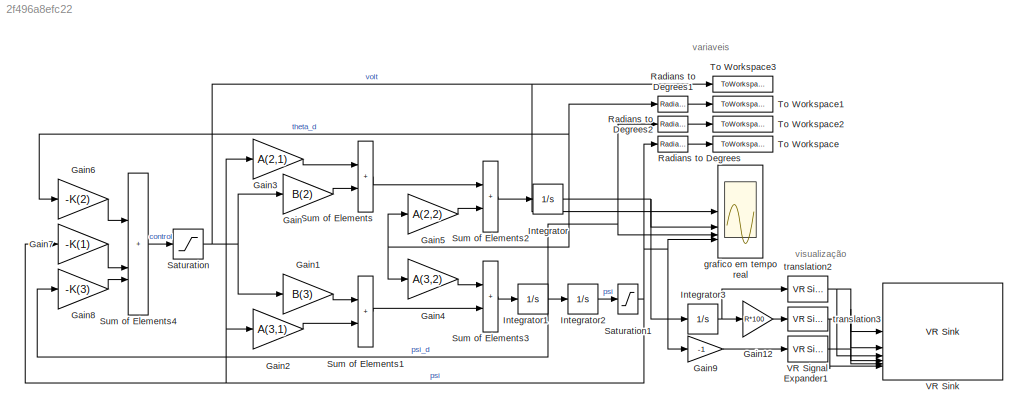
MODEL slx_2f496a8efc22
KIND model
CONFIG AbsTol = auto
CONFIG EnableMultiTasking = off
CONFIG FixedStep = auto
CONFIG InitFcn = start
CONFIG MaxStep = 0.01
CONFIG MinStep = auto
CONFIG RelTol = 1e-3
CONFIG SampleTimeConstraint = Unconstrained
CONFIG SolverName = VariableStepAuto
CONFIG StartTime = 0.0
CONFIG StopTime = 5
BLOCK [Gain] Gain
  Gain = B(2)
BLOCK [Gain] Gain1
  Gain = B(3)
BLOCK [Gain] Gain12
  Gain = R*100
BLOCK [Gain] Gain2
  Gain = A(3,1)
BLOCK [Gain] Gain3
  Gain = A(2,1)
BLOCK [Gain] Gain4
  Gain = A(3,2)
BLOCK [Gain] Gain5
  Gain = A(2,2)
BLOCK [Gain] Gain6
  Gain = -K(2)
  NameLocation = top
BLOCK [Gain] Gain7
  Gain = -K(1)
  NameLocation = top
BLOCK [Gain] Gain8
  Gain = -K(3)
  NameLocation = top
BLOCK [Gain] Gain9
  Gain = -1
BLOCK [Integrator] Integrator
  InitialCondition = Theta_d0
BLOCK [Integrator] Integrator1
  InitialCondition = Psi_d0
BLOCK [Integrator] Integrator2
  InitialCondition = Psi0
BLOCK [Integrator] Integrator3
  InitialCondition = Theta_d0
BLOCK [Reference] Radians to Degrees  REF=simulink_extras/Transformations/Radians
to Degrees
  SourceBlock = simulink_extras/Transformations/Radians\nto Degrees
  SourceType = RadiansToDegrees
BLOCK [Reference] Radians to Degrees1  REF=simulink_extras/Transformations/Radians
to Degrees
  SourceBlock = simulink_extras/Transformations/Radians\nto Degrees
  SourceType = RadiansToDegrees
BLOCK [Reference] Radians to Degrees2  REF=simulink_extras/Transformations/Radians
to Degrees
  SourceBlock = simulink_extras/Transformations/Radians\nto Degrees
  SourceType = RadiansToDegrees
BLOCK [Saturate] Saturation
  LowerLimit = -Umax
  UpperLimit = Umax
BLOCK [Saturate] Saturation1
  LowerLimit = -pi/180*95
  UpperLimit = pi/180*95
BLOCK [Sum] Sum of Elements
  IconShape = rectangular
  Inputs = 2
BLOCK [Sum] Sum of Elements1
  IconShape = rectangular
  Inputs = 2
BLOCK [Sum] Sum of Elements2
  IconShape = rectangular
  Inputs = 2
BLOCK [Sum] Sum of Elements3
  IconShape = rectangular
  Inputs = 2
BLOCK [Sum] Sum of Elements4
  IconShape = rectangular
  Inputs = 3
BLOCK [ToWorkspace] To Workspace
  FixptAsFi = on
  MaxDataPoints = inf
  SampleTime = -1
  VariableName = m_psi
BLOCK [ToWorkspace] To Workspace1
  FixptAsFi = on
  MaxDataPoints = inf
  SampleTime = -1
  VariableName = m_theta_d
BLOCK [ToWorkspace] To Workspace2
  FixptAsFi = on
  MaxDataPoints = inf
  SampleTime = -1
  VariableName = m_psi_d
BLOCK [ToWorkspace] To Workspace3
  FixptAsFi = on
  MaxDataPoints = inf
  SampleTime = -1
  VariableName = m_volt
BLOCK [Reference] VR Signal Expander1  REF=vrlib/VR Signal Expander
  SourceBlock = vrlib/VR Signal Expander
  SourceType = VR Signal Expander
BLOCK [Reference] VR Sink  REF=vrlib/VR Sink
  InstantiateOnLoad = on
  SourceBlock = vrlib/VR Sink
  SourceType = Virtual Reality Sink
BLOCK [Scope] grafico em tempo real
  Floating = off
  NumInputPorts = 4
  ScopeSpecificationString = Simulink.scopes.TimeScopeBlockCfg('CurrentConfiguration', extmgr.ConfigurationSet(extmgr.Configuration('Core','General UI',true),extmgr.Configuration('Core','Source UI',true),extmgr.Configuration('Sources','WiredSimulink',true,'DataLoggingVariableName','ScopeData1'),extmgr.Configuration('Visuals','Time Domain',true,'SerializedDisplays',{struct('MinYLimReal','-1.025','MaxYLimReal','9.225','YLabelRe...<+3487ch>
BLOCK [Reference] translation2  REF=vrlib/VR Signal Expander
  SourceBlock = vrlib/VR Signal Expander
  SourceType = VR Signal Expander
BLOCK [Reference] translation3  REF=vrlib/VR Signal Expander
  SourceBlock = vrlib/VR Signal Expander
  SourceType = VR Signal Expander
ANNOTATION (root): variaveis
ANNOTATION (root): visualização
LINE Gain12:1 -> translation3:1
LINE Gain1:1 -> Sum of Elements1:1
LINE Gain2:1 -> Sum of Elements1:2
LINE Gain3:1 -> Sum of Elements:1
LINE Gain4:1 -> Sum of Elements3:1
LINE Gain5:1 -> Sum of Elements2:2
LINE Gain6:1 -> Sum of Elements4:1
LINE Gain7:1 -> Sum of Elements4:2
LINE Gain8:1 -> Sum of Elements4:3
LINE Gain9:1 -> VR Signal Expander1:1
LINE Gain:1 -> Sum of Elements:2
NET Integrator1:1 -> Gain8:1, Integrator2:1, Radians to Degrees2:1, grafico em tempo real:3
LINE Integrator2:1 -> Saturation1:1
NET Integrator3:1 -> Gain12:1, translation2:1
NET Integrator:1 -> Gain4:1, Gain5:1, Gain6:1, Integrator3:1, Radians to Degrees1:1, grafico em tempo real:2
LINE Radians to Degrees1:1 -> To Workspace1:1
LINE Radians to Degrees2:1 -> To Workspace2:1
LINE Radians to Degrees:1 -> To Workspace:1
NET Saturation1:1 -> Gain2:1, Gain3:1, Gain7:1, Gain9:1, Radians to Degrees:1, grafico em tempo real:4
NET Saturation:1 -> Gain1:1, Gain:1, To Workspace3:1, grafico em tempo real:1
LINE Sum of Elements1:1 -> Sum of Elements3:2
LINE Sum of Elements2:1 -> Integrator:1
LINE Sum of Elements3:1 -> Integrator1:1
LINE Sum of Elements4:1 -> Saturation:1
LINE Sum of Elements:1 -> Sum of Elements2:1
LINE VR Signal Expander1:1 -> VR Sink:5
NET translation2:1 -> VR Sink:1, VR Sink:3
NET translation3:1 -> VR Sink:2, VR Sink:4, VR Sink:6
note: NET lines group one-source signal fan-out (src -> all destinations, sorted); 1:1 wires keep LINE
